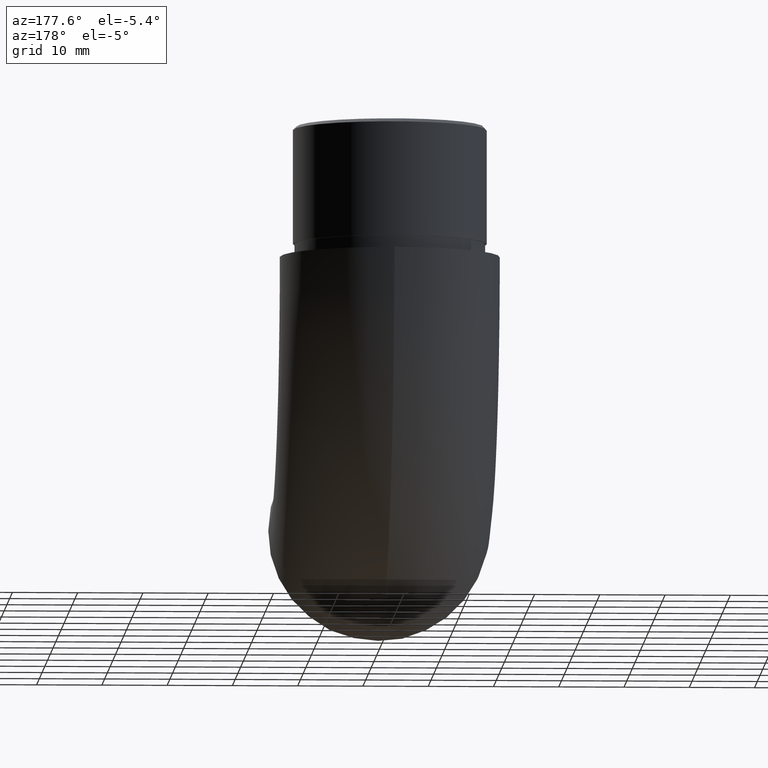
[diagram: clean part render]
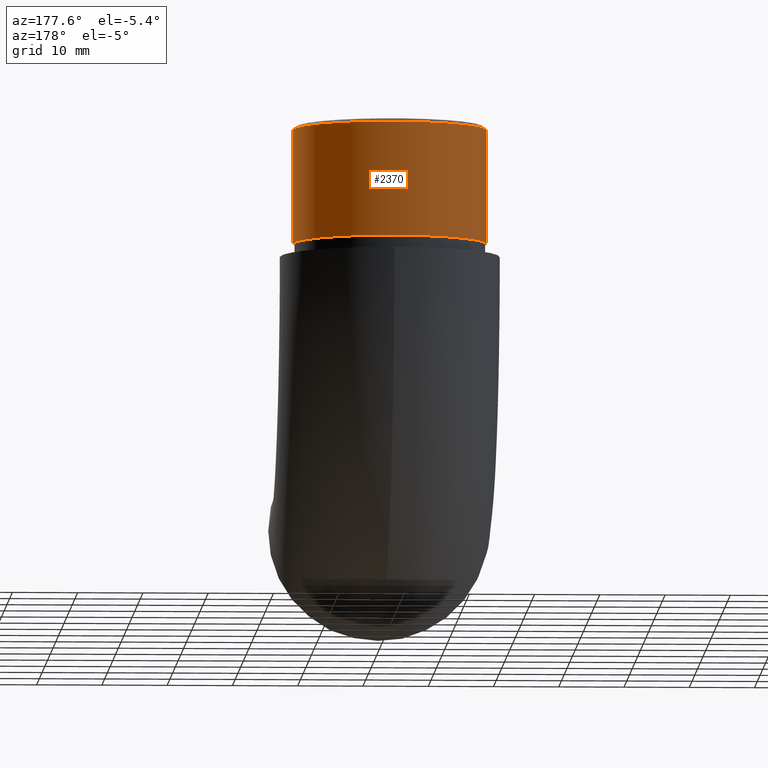
[diagram: same view with one face highlighted and labeled with its STEP entity id]
A machine part, auxiliary view. The second image highlights one B-rep face of the part: STEP entity #2370.
In plain terms, the highlighted cylindrical surface (partial cylindrical patch) has radius 14.85 mm, axis along (-0, -0, -1).
Its self-contained STEP definition (entity closure, byte-faithful):
#287 = VERTEX_POINT ( 'NONE', #7533 ) ;
#330 = DIRECTION ( 'NONE',  ( -0.000000000000000000, -0.000000000000000000, -1.000000000000000000 ) ) ;
#416 = CARTESIAN_POINT ( 'NONE',  ( 0.000000000000000000, 38.14999999999999858, 19.99999999999999645 ) ) ;
#515 = VERTEX_POINT ( 'NONE', #8031 ) ;
#732 = EDGE_LOOP ( 'NONE', ( #1324, #5932, #7800, #974 ) ) ;
#800 = CIRCLE ( 'NONE', #7519, 14.85000000000000142 ) ;
#974 = ORIENTED_EDGE ( 'NONE', *, *, #3761, .F. ) ;
#1324 = ORIENTED_EDGE ( 'NONE', *, *, #6760, .T. ) ;
#2072 = CYLINDRICAL_SURFACE ( 'NONE', #2167, 14.85000000000000142 ) ;
#2138 = CARTESIAN_POINT ( 'NONE',  ( 14.85000000000000142, 38.14999999999999858, 19.99999999999999645 ) ) ;
#2167 = AXIS2_PLACEMENT_3D ( 'NONE', #416, #10003, #5353 ) ;
#2278 = VERTEX_POINT ( 'NONE', #2439 ) ;
#2370 = ADVANCED_FACE ( 'NONE', ( #5785 ), #2072, .T. ) ;
#2439 = CARTESIAN_POINT ( 'NONE',  ( -14.85000000000000142, 38.14999999999999858, 2.000000000000000000 ) ) ;
#2496 = CARTESIAN_POINT ( 'NONE',  ( 0.000000000000000000, 38.14999999999999858, 19.49999999999998934 ) ) ;
#3108 = CIRCLE ( 'NONE', #9361, 14.85000000000000142 ) ;
#3286 = EDGE_CURVE ( 'NONE', #515, #2278, #3108, .T. ) ;
#3761 = EDGE_CURVE ( 'NONE', #287, #2278, #7439, .T. ) ;
#3851 = DIRECTION ( 'NONE',  ( -0.000000000000000000, -0.000000000000000000, -1.000000000000000000 ) ) ;
#4657 = VECTOR ( 'NONE', #330, 1000.000000000000000 ) ;
#4970 = EDGE_CURVE ( 'NONE', #5823, #515, #10027, .T. ) ;
#5353 = DIRECTION ( 'NONE',  ( -1.000000000000000000, 0.000000000000000000, 0.000000000000000000 ) ) ;
#5379 = DIRECTION ( 'NONE',  ( 0.000000000000000000, 0.000000000000000000, 1.000000000000000000 ) ) ;
#5784 = CARTESIAN_POINT ( 'NONE',  ( -14.85000000000000142, 38.14999999999999858, 19.99999999999999645 ) ) ;
#5785 = FACE_OUTER_BOUND ( 'NONE', #732, .T. ) ;
#5823 = VERTEX_POINT ( 'NONE', #7244 ) ;
#5932 = ORIENTED_EDGE ( 'NONE', *, *, #4970, .T. ) ;
#6760 = EDGE_CURVE ( 'NONE', #287, #5823, #800, .T. ) ;
#7132 = VECTOR ( 'NONE', #3851, 1000.000000000000000 ) ;
#7244 = CARTESIAN_POINT ( 'NONE',  ( 14.85000000000000142, 38.14999999999999858, 19.49999999999998934 ) ) ;
#7439 = LINE ( 'NONE', #5784, #7132 ) ;
#7519 = AXIS2_PLACEMENT_3D ( 'NONE', #2496, #10057, #8057 ) ;
#7533 = CARTESIAN_POINT ( 'NONE',  ( -14.85000000000000142, 38.14999999999999858, 19.49999999999998934 ) ) ;
#7800 = ORIENTED_EDGE ( 'NONE', *, *, #3286, .T. ) ;
#8031 = CARTESIAN_POINT ( 'NONE',  ( 14.85000000000000142, 38.14999999999999858, 2.000000000000000000 ) ) ;
#8057 = DIRECTION ( 'NONE',  ( 1.000000000000000000, 0.000000000000000000, 0.000000000000000000 ) ) ;
#9244 = DIRECTION ( 'NONE',  ( 1.000000000000000000, 0.000000000000000000, 0.000000000000000000 ) ) ;
#9361 = AXIS2_PLACEMENT_3D ( 'NONE', #12156, #5379, #9244 ) ;
#10003 = DIRECTION ( 'NONE',  ( -0.000000000000000000, -0.000000000000000000, -1.000000000000000000 ) ) ;
#10027 = LINE ( 'NONE', #2138, #4657 ) ;
#10057 = DIRECTION ( 'NONE',  ( 0.000000000000000000, 0.000000000000000000, -1.000000000000000000 ) ) ;
#12156 = CARTESIAN_POINT ( 'NONE',  ( 0.000000000000000000, 38.14999999999999858, 2.000000000000000000 ) ) ;